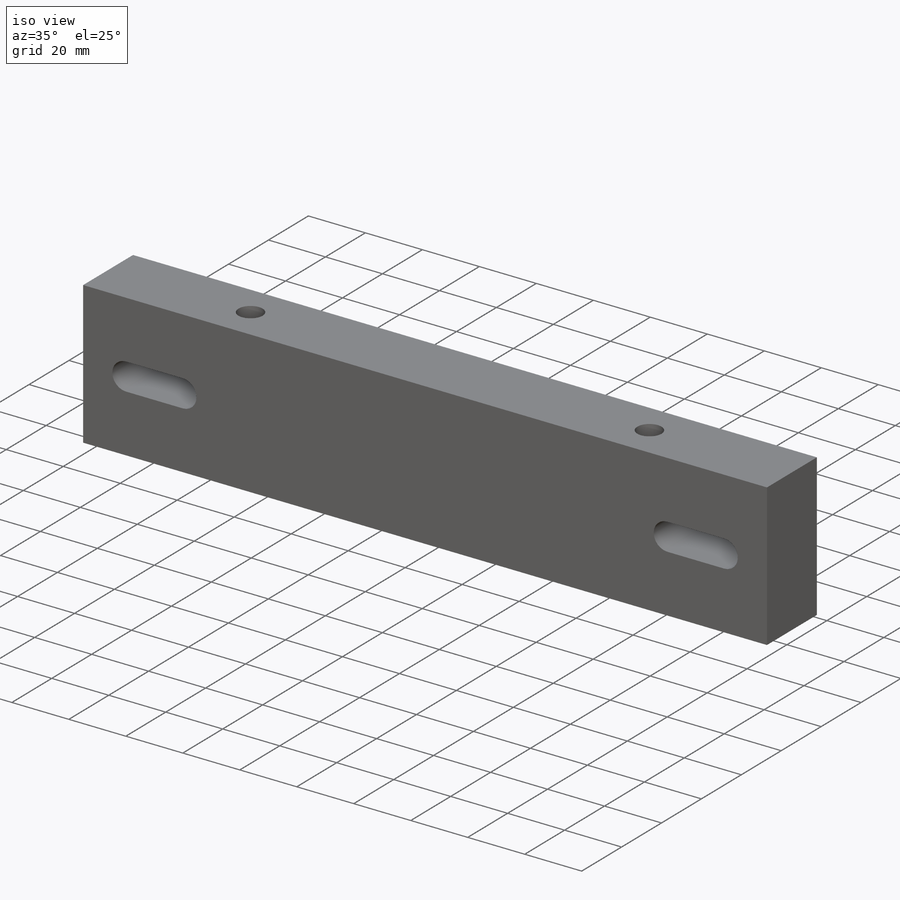
[diagram: iso view]
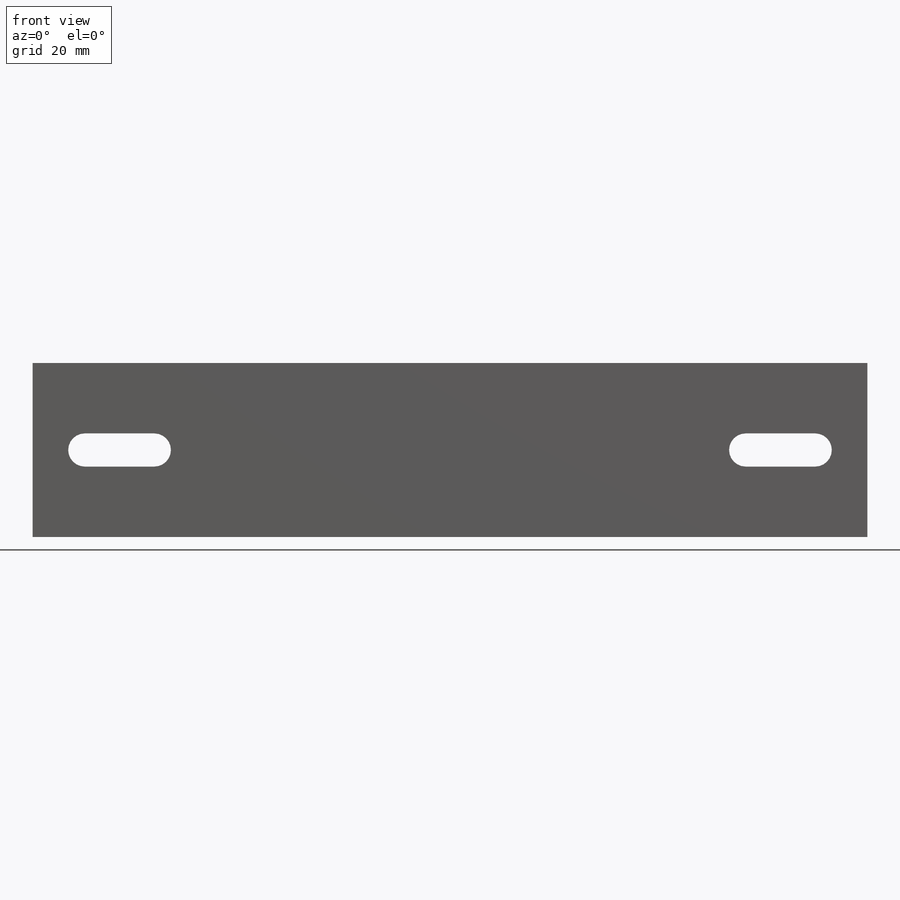
[diagram: front view]
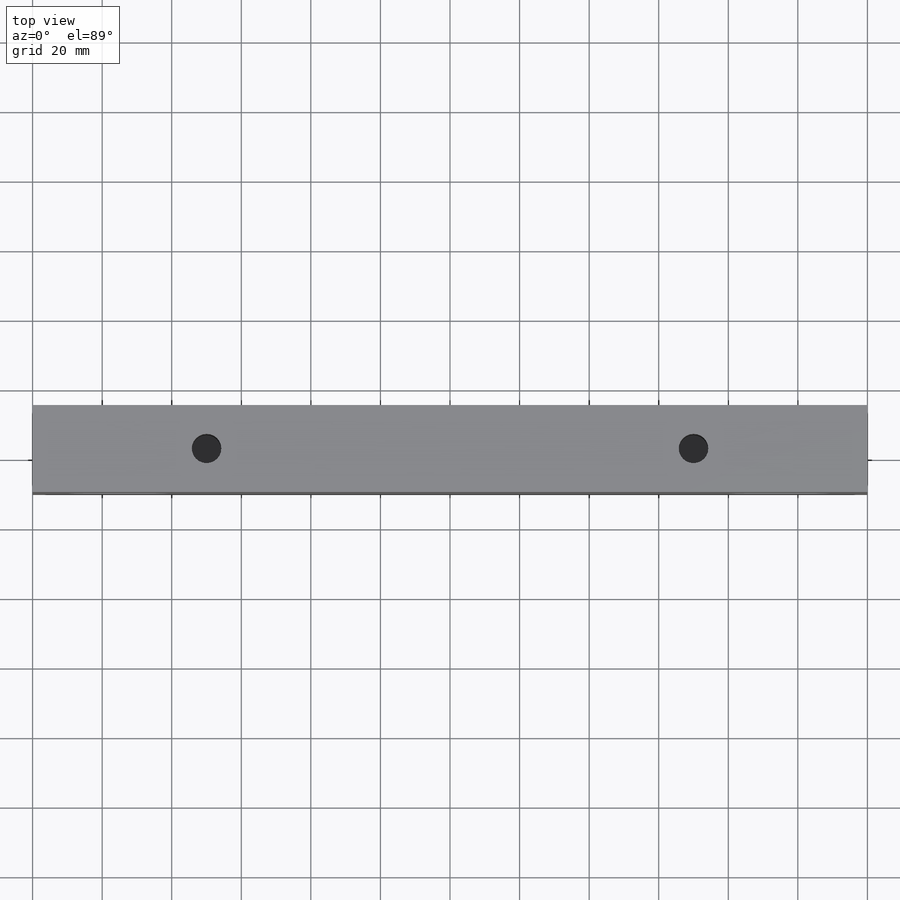
[diagram: top view]
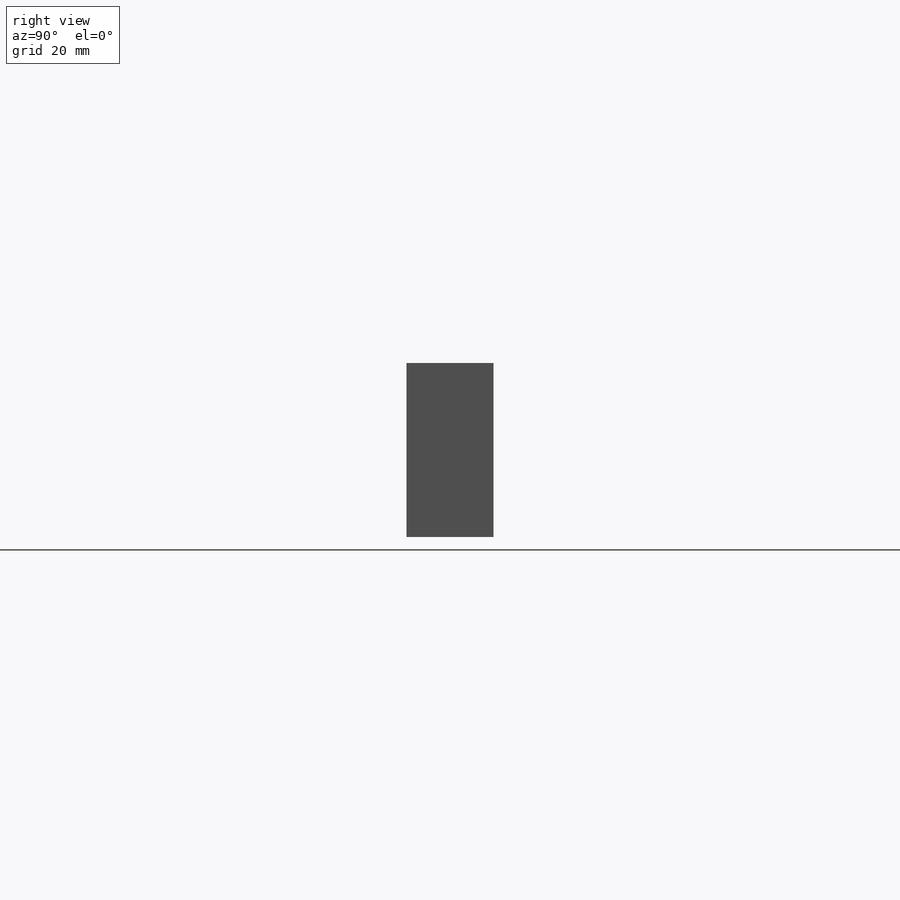
[diagram: right view]
SOLIDWORKS PART (.sldprt)
format: sldprt  version: not decoded by parser v0  size: 175,104 bytes
history: native  units: mm
features: plane x3, sketch x3, cut_extrude x2, material x1, extrude x1 (+10 scaffold rows collapsed)
feature tree (20):
  scaffold x10  (default folders/planes/origin — collapsed)
  material  "Material <sin especificar>"
  plane  "Alzado"
  plane  "Planta"
  plane  "Vista lateral"
  sketch  "Croquis1"  dims[D4=~18.80597mm D1=25.0mm D2=240.0mm D3=120.0mm]
  extrude  "Saliente-Extruir1"  Depth=50mm
  sketch  "Croquis2"  dims[D1=8.5mm D2=8.5mm D3=50.0mm D4=50.0mm D5=12.5mm D6=12.5mm]
  cut_extrude  "Cortar-Extruir1"  Depth=25mm
  sketch  "Croquis3"  dims[D1=20.0mm D2=20.0mm D3=15.0mm D4=15.0mm D5=25.0mm D6=25.0mm]
  cut_extrude  "Cortar-Extruir3"  [1 undecoded]
decode coverage: 5 of 6 modeling features carry decoded parameters
note: ~ marks probable driven/reference dimensions
note: 1 parameter value undecoded
note: suppression state not decoded; provenance and decode notes live in map.json
